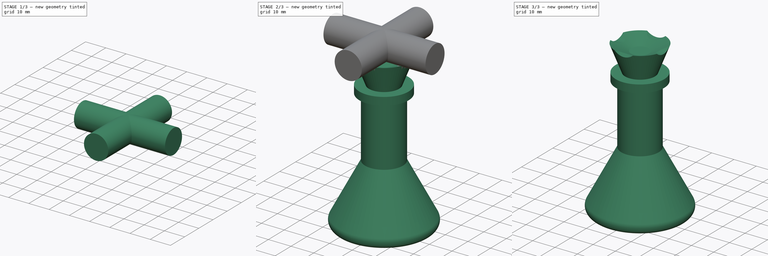
[diagram: build sequence overview — one tinted view per stage of 3, left to right]
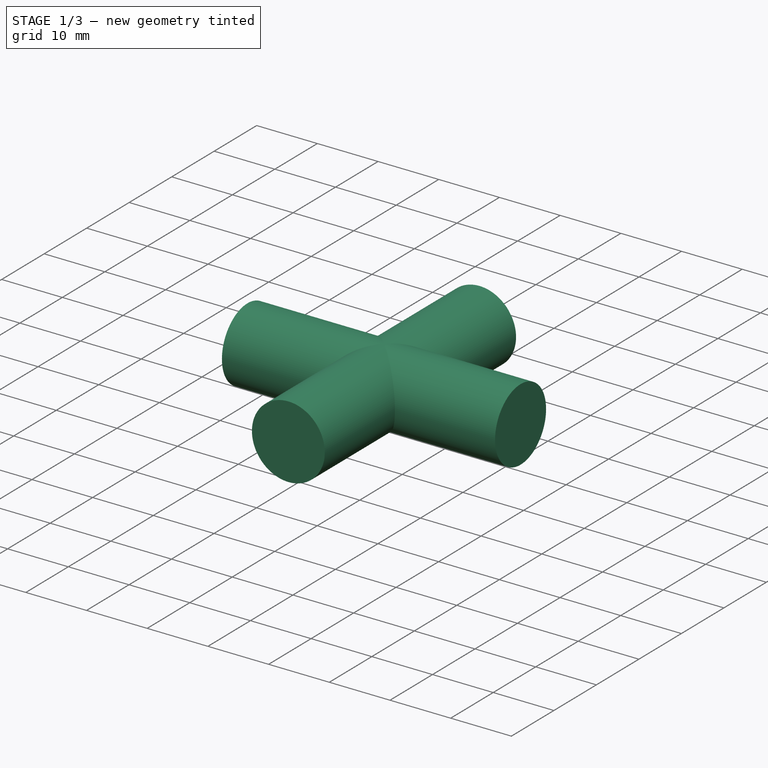
[diagram: stage 1 of 3 — iso view after this stage's code; geometry added in this stage tinted green]
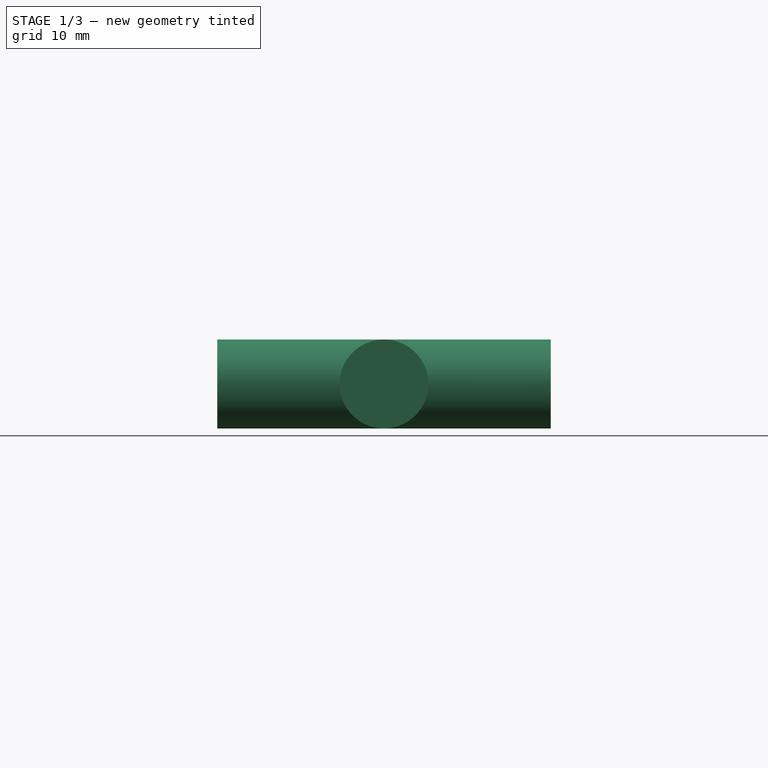
[diagram: stage 1 of 3 — front view after this stage's code; geometry added in this stage tinted green]
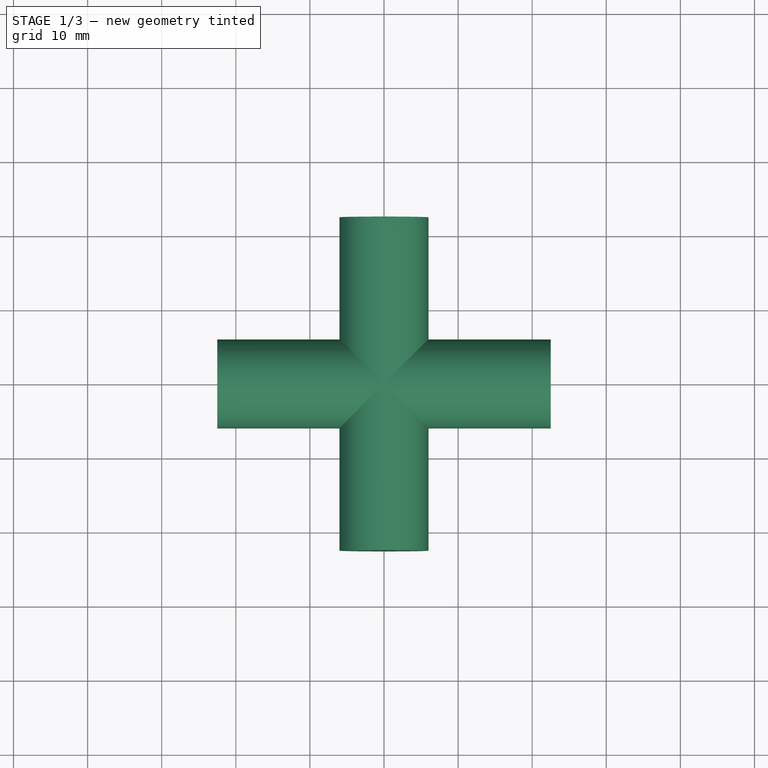
[diagram: stage 1 of 3 — top view after this stage's code; geometry added in this stage tinted green]
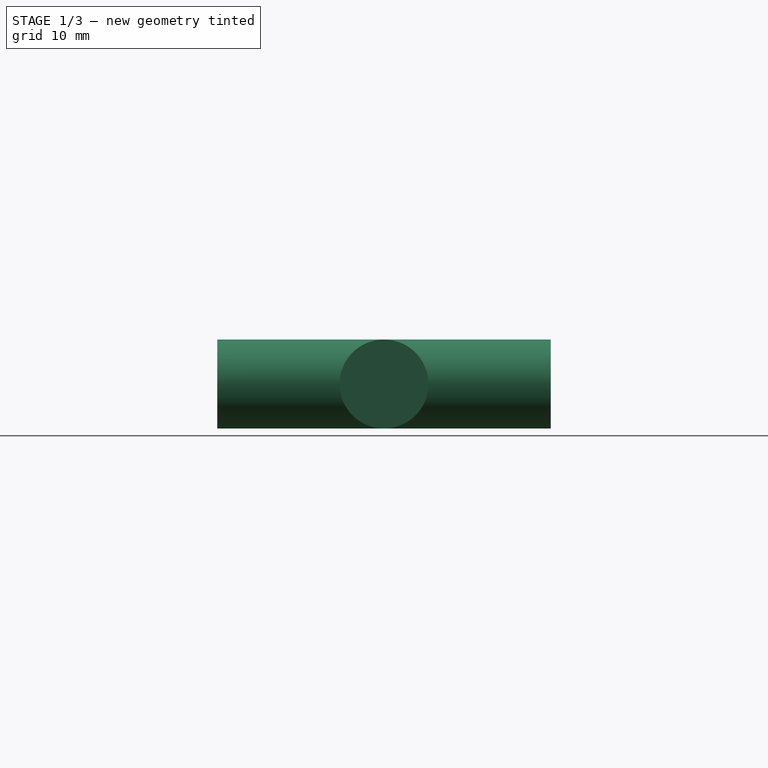
[diagram: stage 1 of 3 — right view after this stage's code; geometry added in this stage tinted green]
FCSTD DOCUMENT  (FreeCAD 0.16R)
Label: Queen1
License: All rights reserved
LicenseURL: http://en.wikipedia.org/wiki/All_rights_reserved
objects: Sketcher::SketchObject×4, PartDesign::Pad×2, Part::Cut×2, PartDesign::Revolution×1
note: 12 computed .brp shape members not serialized (recipe doc carries the construction recipe); baked Part::Feature solids carry a one-line shape summary decoded from their .brp

FEATURE [Sketcher::SketchObject] Sketch001
  Placement = pos=(0,0,0) rot=(-1,0,0;4.71239rad)
  sketch-geometry (1):
    g0: Circle CenterX=0 CenterY=73 CenterZ=0 NormalX=0 NormalY=0 NormalZ=1 Radius=6
  constraints (3):
    c: PointOnObject(g0,g-2)
    c: Radius(g0) = 6
    c: DistanceY(g0) = 73
FEATURE [PartDesign::Pad] Pad
  Length = 45
  Length2 = 100
  Midplane = true
  Placement = pos=(0,0,0) rot=(-1,0,0;4.71239rad)
  Sketch = -> Sketch001
  Type = 0
FEATURE [Sketcher::SketchObject] Sketch002
  Placement = pos=(0,0,0) rot=(1,0,0;1.5708rad)
  sketch-geometry (1):
    g0: Circle CenterX=0 CenterY=73 CenterZ=0 NormalX=0 NormalY=0 NormalZ=1 Radius=6
  constraints (3):
    c: PointOnObject(g0,g-2)
    c: Radius(g0) = 6
    c: DistanceY(g0) = 73
FEATURE [Sketcher::SketchObject] Sketch003
  Placement = pos=(0,0,0) rot=(0.57735,0.57735,0.57735;2.0944rad)
  sketch-geometry (1):
    g0: Circle CenterX=0 CenterY=73 CenterZ=0 NormalX=0 NormalY=0 NormalZ=1 Radius=6
  constraints (3):
    c: PointOnObject(g0,g-2)
    c: Radius(g0) = 6
    c: DistanceY(g0) = 73
FEATURE [PartDesign::Pad] Pad001
  Length = 45
  Length2 = 100
  Midplane = true
  Placement = pos=(0,0,0) rot=(0.57735,0.57735,0.57735;2.0944rad)
  Sketch = -> Sketch003
  Type = 0
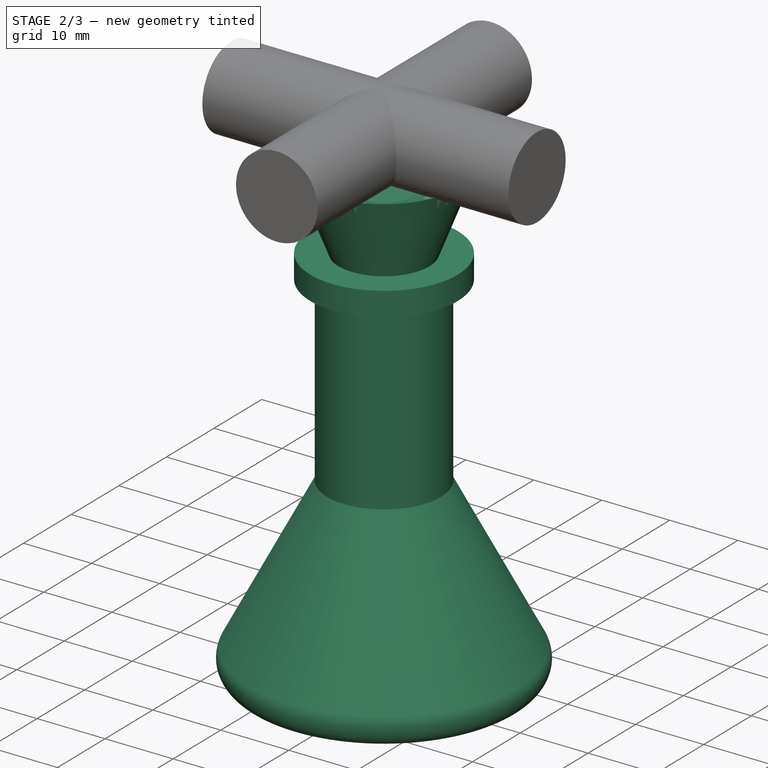
[diagram: stage 2 of 3 — iso view after this stage's code; geometry added in this stage tinted green]
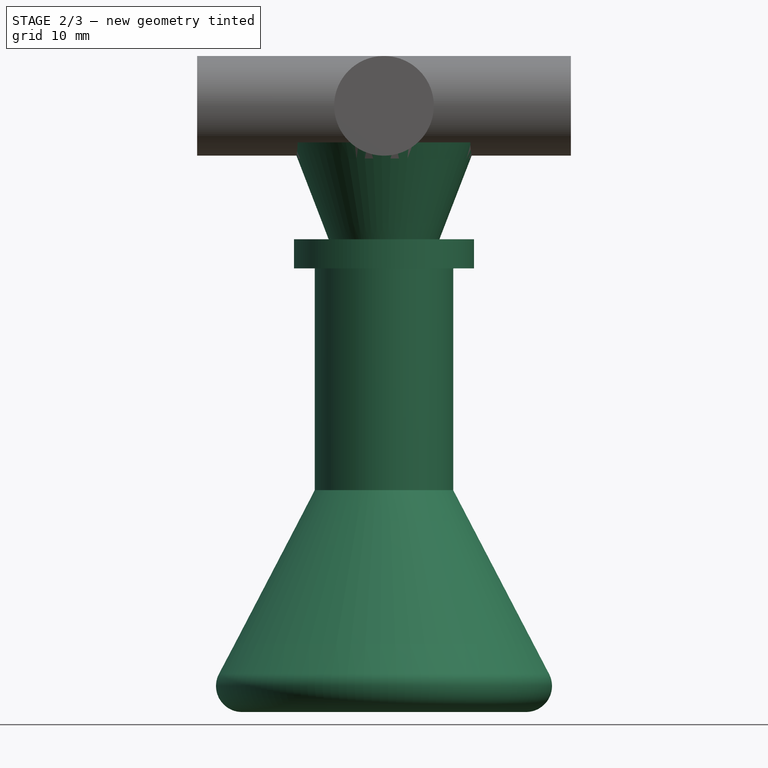
[diagram: stage 2 of 3 — front view after this stage's code; geometry added in this stage tinted green]
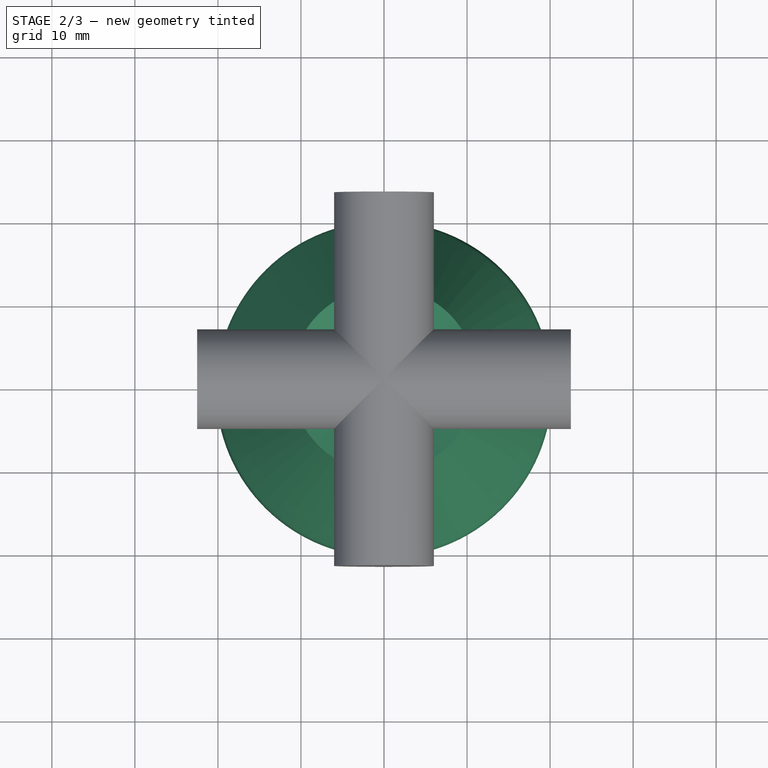
[diagram: stage 2 of 3 — top view after this stage's code; geometry added in this stage tinted green]
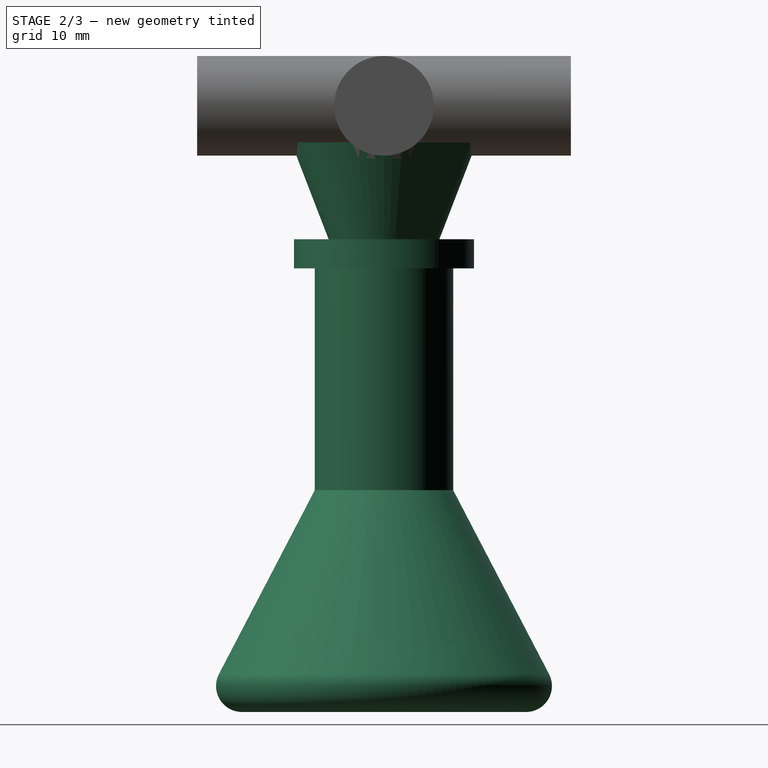
[diagram: stage 2 of 3 — right view after this stage's code; geometry added in this stage tinted green]
FEATURE [Sketcher::SketchObject] Sketch
  Placement = pos=(0,0,0) rot=(-1,0,0;4.71239rad)
  sketch-geometry (11):
    g0: LineSegment StartX=0 StartY=65.4258 StartZ=0 EndX=4.00056 EndY=65.4258 EndZ=0
    g1: LineSegment StartX=4.00056 StartY=65.4258 StartZ=0 EndX=11.1682 EndY=68.5929 EndZ=0
    g2: LineSegment StartX=11.1682 StartY=68.5929 StartZ=0 EndX=6.6676 EndY=56.9246 EndZ=0
    g3: LineSegment StartX=6.6676 StartY=56.9246 StartZ=0 EndX=10.8348 EndY=56.9246 EndZ=0
    g4: LineSegment StartX=10.8348 StartY=56.9246 StartZ=0 EndX=10.8348 EndY=53.4241 EndZ=0
    g5: LineSegment StartX=10.8348 StartY=53.4241 StartZ=0 EndX=8.33726 EndY=53.4241 EndZ=0
    g6: LineSegment StartX=8.33726 StartY=53.4241 StartZ=0 EndX=8.33726 EndY=26.714 EndZ=0
    g7: LineSegment StartX=8.33726 StartY=26.714 StartZ=0 EndX=19.8758 EndY=4.58196 EndZ=0
    g8: LineSegment StartX=0 StartY=0 StartZ=0 EndX=17.0973 EndY=0 EndZ=0
    g9: ArcOfCircle CenterX=17.0973 CenterY=3.13341 CenterZ=0 NormalX=0 NormalY=0 NormalZ=1 Radius=3.13341 StartAngle=4.71239 EndAngle=6.76377
    g10: LineSegment StartX=0 StartY=65.4258 StartZ=0 EndX=0 EndY=0 EndZ=0
  constraints (21):
    c: PointOnObject(g0,g-2)
    c: Coincident(g0,g1)
    c: Coincident(g1,g2)
    c: Coincident(g2,g3)
    c: Coincident(g3,g4)
    c: Vertical(g4)
    c: Coincident(g4,g5)
    c: Horizontal(g5)
    c: Coincident(g5,g6)
    c: Vertical(g6)
    c: Coincident(g6,g7)
    c: Coincident(g8,g-1)
    c: Horizontal(g8)
    c: Coincident(g9,g7)
    c: Tangent(g9,g7)
    c: Coincident(g9,g8)
    c: Tangent(g9,g8)
    c: Coincident(g10,g0)
    c: Coincident(g10,g-1)
    c: Horizontal(g0)
    c: Horizontal(g3)
FEATURE [PartDesign::Revolution] Revolution
  Angle = 360
  Axis = (0,0,1)
  Base = (0,0,0)
  Placement = pos=(0,0,0) rot=(-1,0,0;4.71239rad)
  ReferenceAxis = -> Sketch [V_Axis]
  Reversed = true
  Sketch = -> Sketch
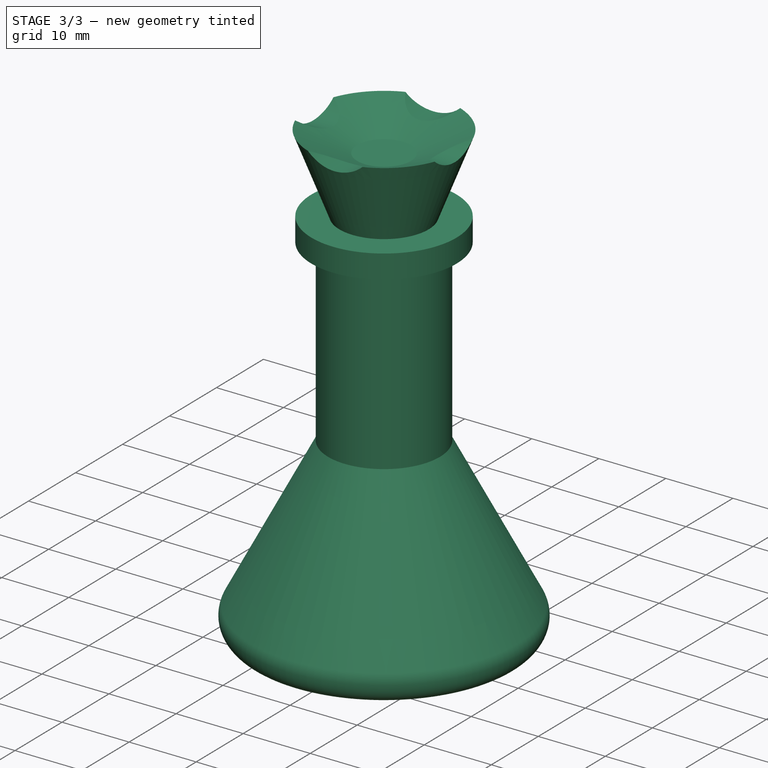
[diagram: stage 3 of 3 — iso view after this stage's code; geometry added in this stage tinted green]
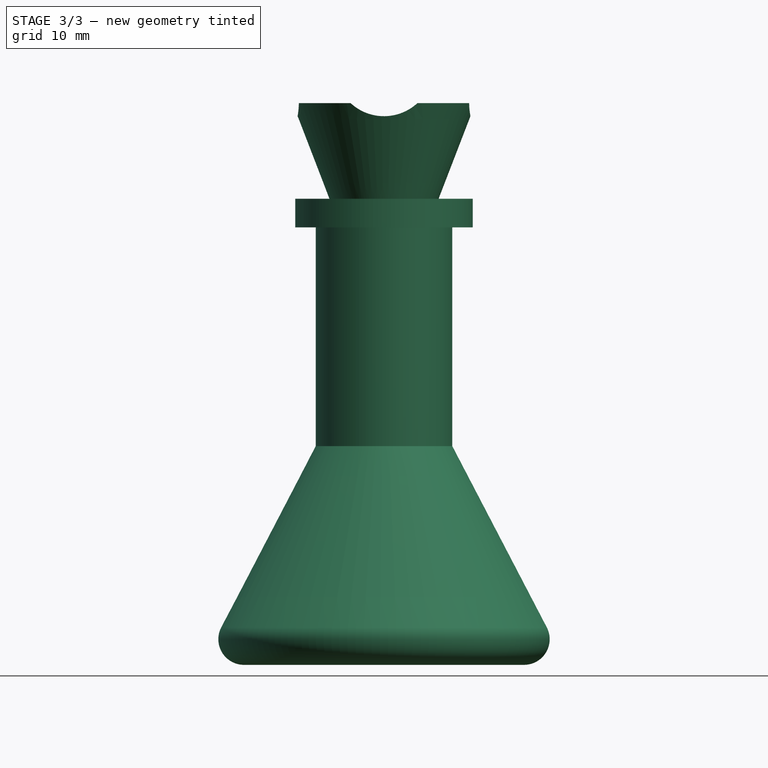
[diagram: stage 3 of 3 — front view after this stage's code; geometry added in this stage tinted green]
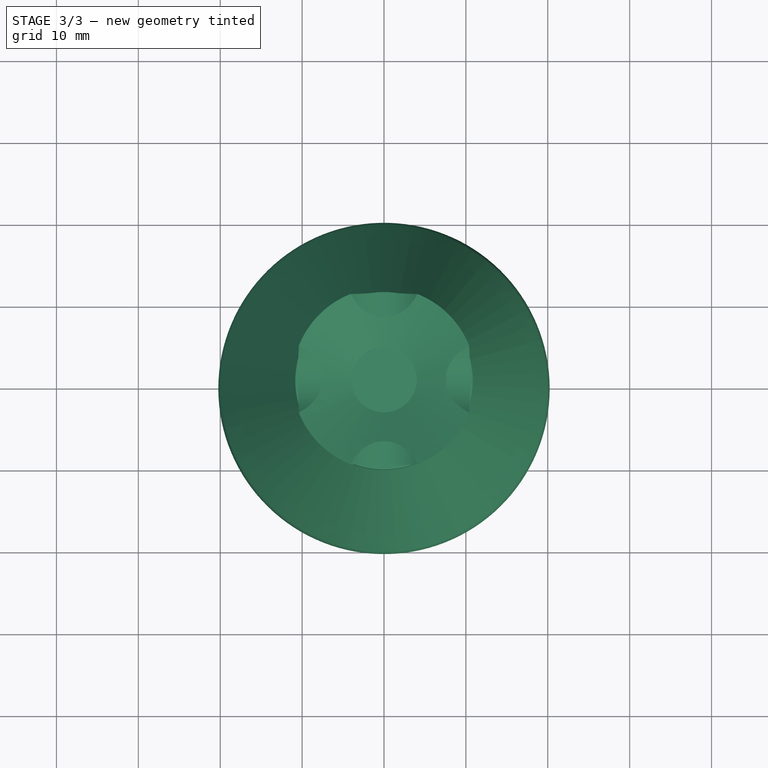
[diagram: stage 3 of 3 — top view after this stage's code; geometry added in this stage tinted green]
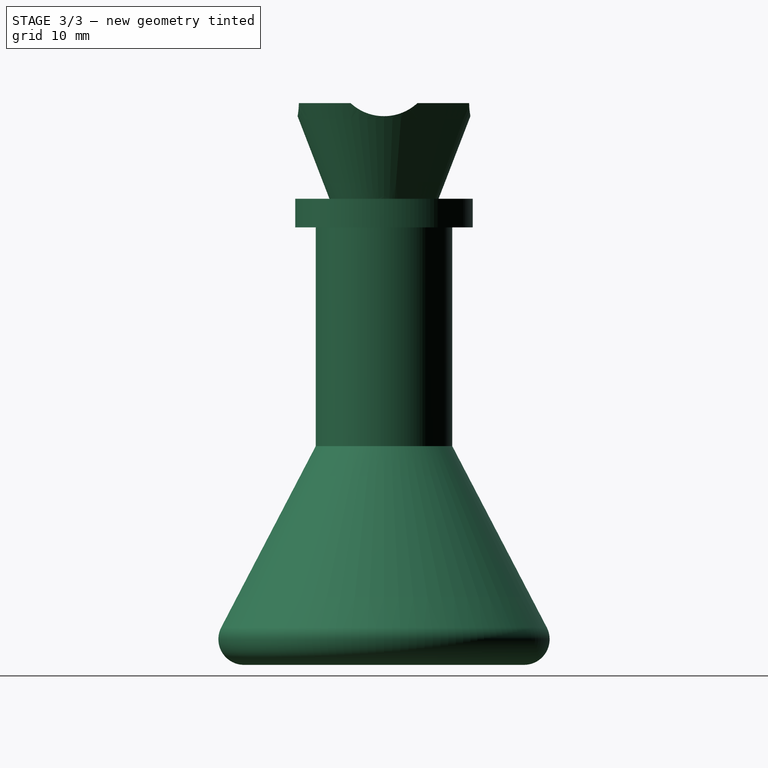
[diagram: stage 3 of 3 — right view after this stage's code; geometry added in this stage tinted green]
FEATURE [Part::Cut] Cut
  Base = -> Revolution
  Tool = -> Pad
FEATURE [Part::Cut] Cut001
  Base = -> Cut
  Tool = -> Pad001
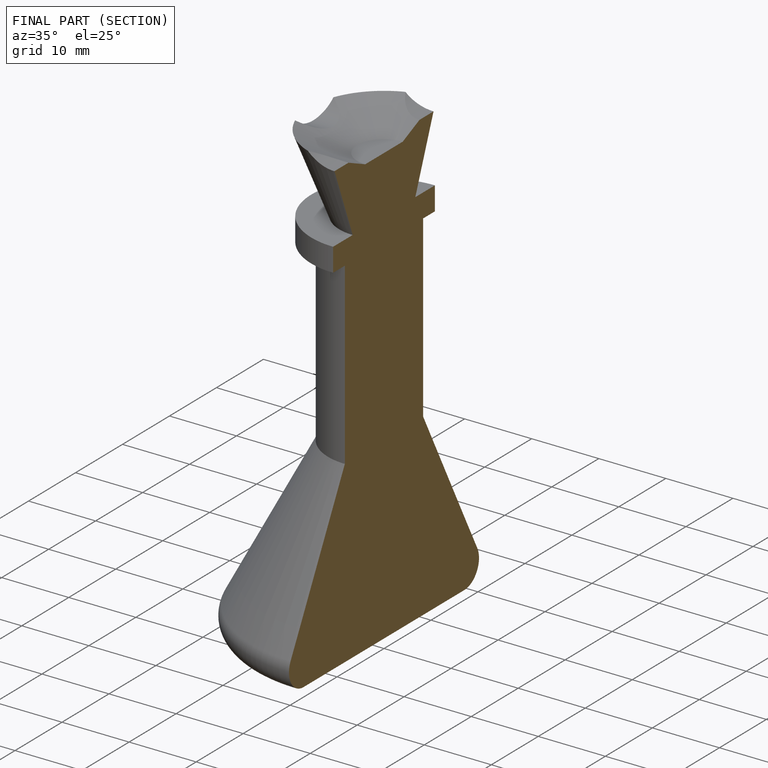
[diagram: finished part — half-section view (interior)]
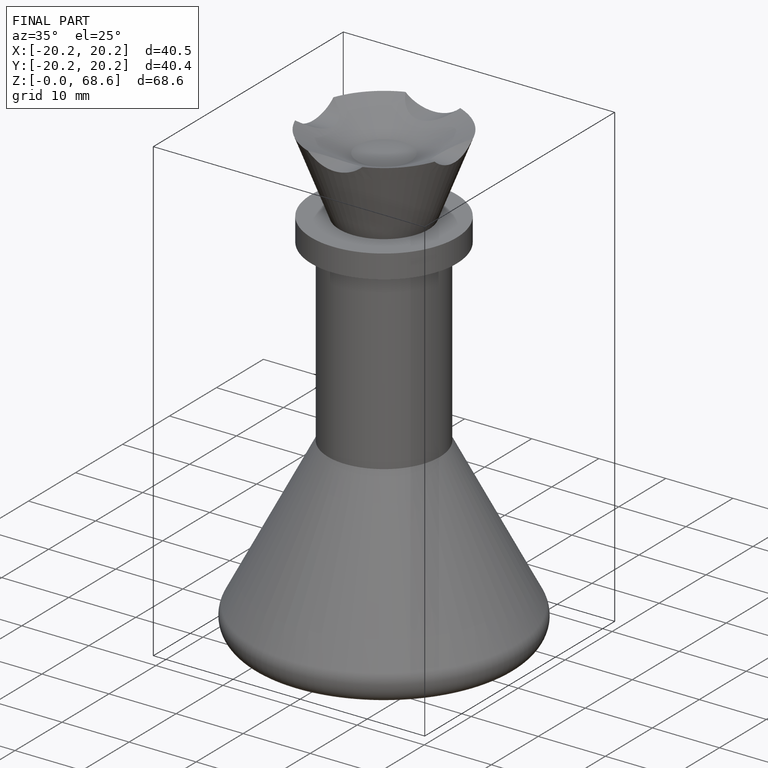
[diagram: finished part — iso view with bounding-box wireframe]
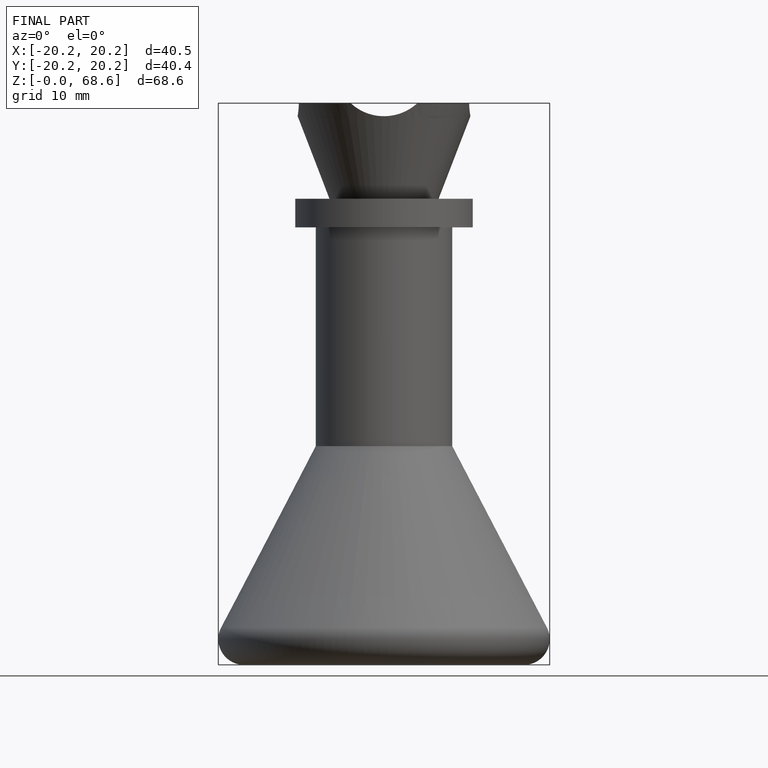
[diagram: finished part — front view with bounding-box wireframe]
